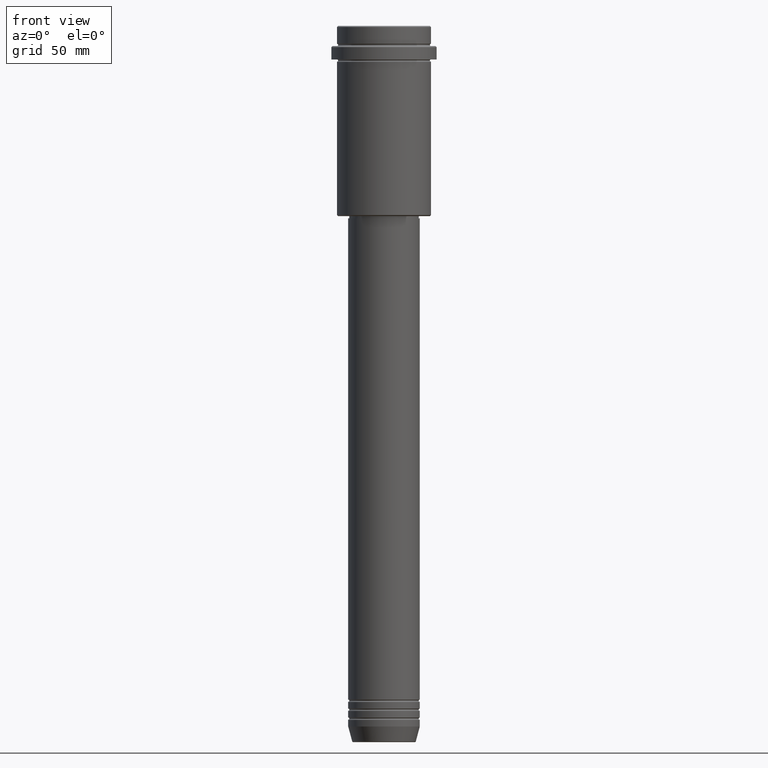
[diagram: clean part render]
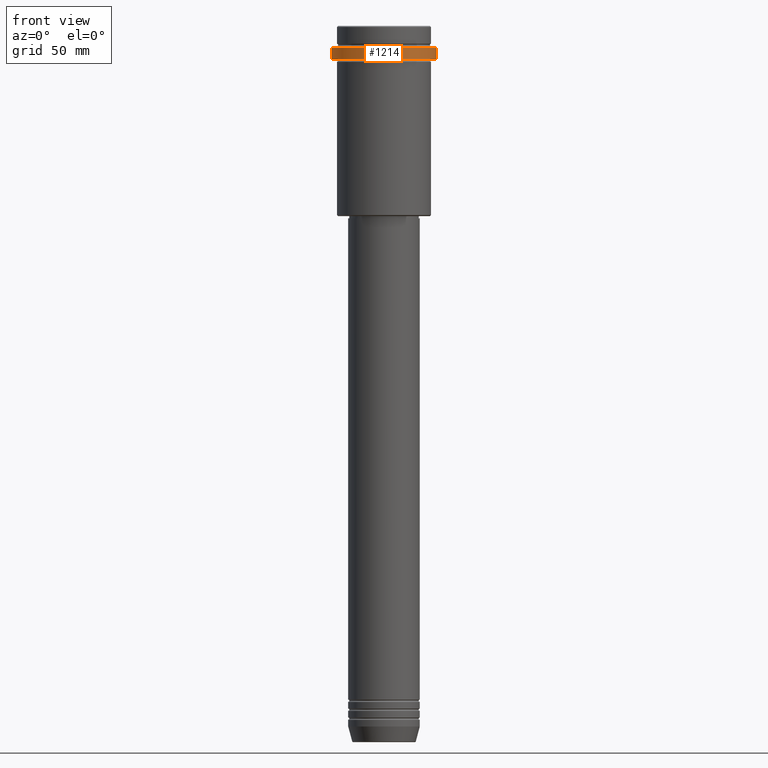
[diagram: same view with one face highlighted and labeled with its STEP entity id]
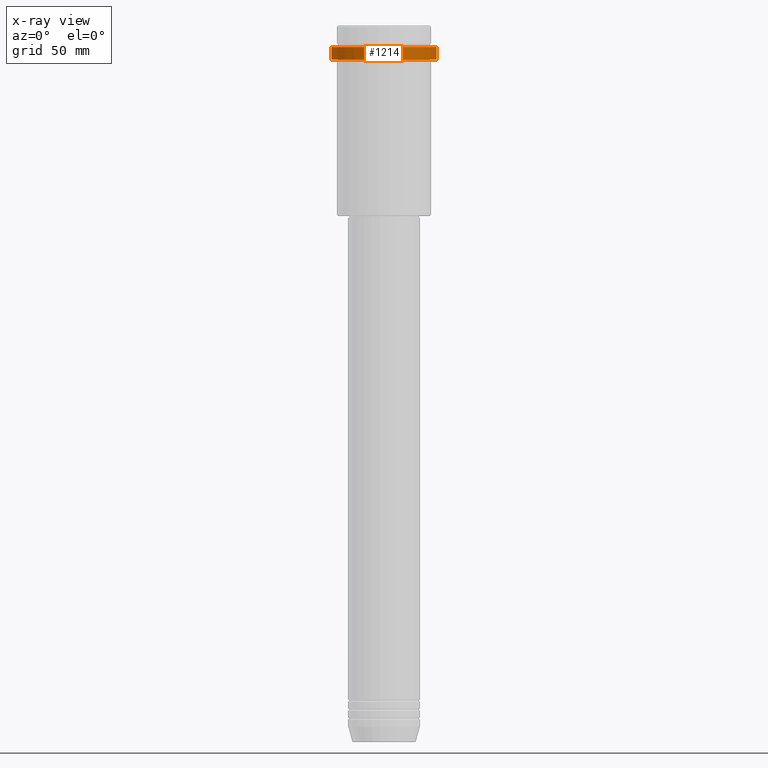
[diagram: x-ray of the same camera — body ghosted, the highlighted face saturated]
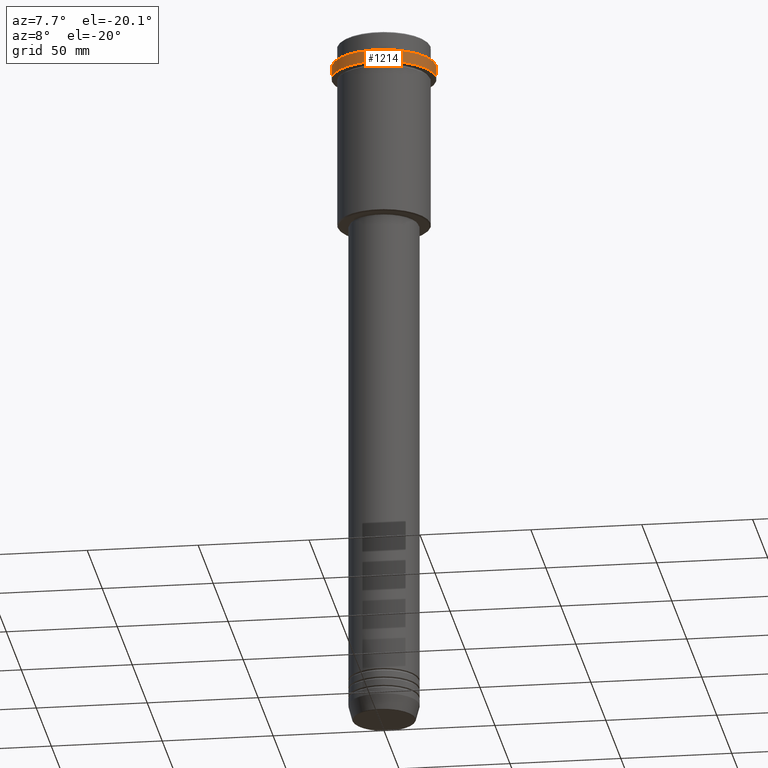
[diagram: same view with one face highlighted and labeled with its STEP entity id]
A machine part, front view. The second image highlights one B-rep face of the part: STEP entity #1214.
The next image is the same camera in x-ray: the body ghosted, the highlighted face saturated — about 0% of this face is hidden behind the body in this view.
A second angle (auxiliary view) of the same face is appended — the face is thin or edge-on in the first view.
In plain terms, the highlighted cylindrical surface (partial cylindrical patch) has radius 23.5 mm, axis along (-0, -0, 1).
Its self-contained STEP definition (entity closure, byte-faithful):
#20 = ORIENTED_EDGE ( 'NONE', *, *, #143, .F. ) ;
#60 = AXIS2_PLACEMENT_3D ( 'NONE', #231, #673, #1347 ) ;
#117 = EDGE_CURVE ( 'NONE', #539, #894, #1190, .T. ) ;
#122 = DIRECTION ( 'NONE',  ( -0.000000000000000000, -0.000000000000000000, 1.000000000000000000 ) ) ;
#143 = EDGE_CURVE ( 'NONE', #539, #729, #978, .T. ) ;
#166 = CARTESIAN_POINT ( 'NONE',  ( 23.50000000000000000, 0.000000000000000000, -9.499999999999973355 ) ) ;
#231 = CARTESIAN_POINT ( 'NONE',  ( 0.000000000000000000, 0.000000000000000000, -9.499999999999973355 ) ) ;
#293 = ORIENTED_EDGE ( 'NONE', *, *, #1053, .T. ) ;
#337 = FACE_OUTER_BOUND ( 'NONE', #836, .T. ) ;
#343 = VERTEX_POINT ( 'NONE', #166 ) ;
#398 = CARTESIAN_POINT ( 'NONE',  ( 0.000000000000000000, 0.000000000000000000, -15.00000000000000178 ) ) ;
#453 = CARTESIAN_POINT ( 'NONE',  ( 23.50000000000000355, 0.000000000000000000, -15.00000000000000178 ) ) ;
#539 = VERTEX_POINT ( 'NONE', #761 ) ;
#611 = VECTOR ( 'NONE', #1289, 1000.000000000000000 ) ;
#630 = DIRECTION ( 'NONE',  ( -0.000000000000000000, -0.000000000000000000, 1.000000000000000000 ) ) ;
#670 = DIRECTION ( 'NONE',  ( 1.000000000000000000, 0.000000000000000000, 0.000000000000000000 ) ) ;
#673 = DIRECTION ( 'NONE',  ( 0.000000000000000000, 0.000000000000000000, -1.000000000000000000 ) ) ;
#729 = VERTEX_POINT ( 'NONE', #935 ) ;
#761 = CARTESIAN_POINT ( 'NONE',  ( -23.50000000000000711, 2.877919977996281109E-15, -15.00000000000000178 ) ) ;
#836 = EDGE_LOOP ( 'NONE', ( #20, #956, #293, #1188 ) ) ;
#842 = AXIS2_PLACEMENT_3D ( 'NONE', #906, #122, #670 ) ;
#875 = LINE ( 'NONE', #979, #611 ) ;
#885 = CYLINDRICAL_SURFACE ( 'NONE', #842, 23.50000000000000000 ) ;
#894 = VERTEX_POINT ( 'NONE', #453 ) ;
#906 = CARTESIAN_POINT ( 'NONE',  ( 0.000000000000000000, 0.000000000000000000, 0.000000000000000000 ) ) ;
#911 = EDGE_CURVE ( 'NONE', #343, #729, #1120, .T. ) ;
#935 = CARTESIAN_POINT ( 'NONE',  ( -23.50000000000000000, 2.877919977996280320E-15, -9.499999999999973355 ) ) ;
#956 = ORIENTED_EDGE ( 'NONE', *, *, #117, .T. ) ;
#978 = LINE ( 'NONE', #1402, #1167 ) ;
#979 = CARTESIAN_POINT ( 'NONE',  ( 23.50000000000000000, 0.000000000000000000, 0.000000000000000000 ) ) ;
#983 = AXIS2_PLACEMENT_3D ( 'NONE', #398, #1409, #1180 ) ;
#1053 = EDGE_CURVE ( 'NONE', #894, #343, #875, .T. ) ;
#1120 = CIRCLE ( 'NONE', #60, 23.50000000000000000 ) ;
#1167 = VECTOR ( 'NONE', #630, 1000.000000000000000 ) ;
#1180 = DIRECTION ( 'NONE',  ( 1.000000000000000000, 0.000000000000000000, 0.000000000000000000 ) ) ;
#1188 = ORIENTED_EDGE ( 'NONE', *, *, #911, .T. ) ;
#1190 = CIRCLE ( 'NONE', #983, 23.50000000000000355 ) ;
#1214 = ADVANCED_FACE ( 'NONE', ( #337 ), #885, .T. ) ;
#1289 = DIRECTION ( 'NONE',  ( -0.000000000000000000, -0.000000000000000000, 1.000000000000000000 ) ) ;
#1347 = DIRECTION ( 'NONE',  ( 1.000000000000000000, 0.000000000000000000, 0.000000000000000000 ) ) ;
#1402 = CARTESIAN_POINT ( 'NONE',  ( -23.50000000000000000, 2.877919977996280320E-15, 0.000000000000000000 ) ) ;
#1409 = DIRECTION ( 'NONE',  ( -0.000000000000000000, -0.000000000000000000, 1.000000000000000000 ) ) ;